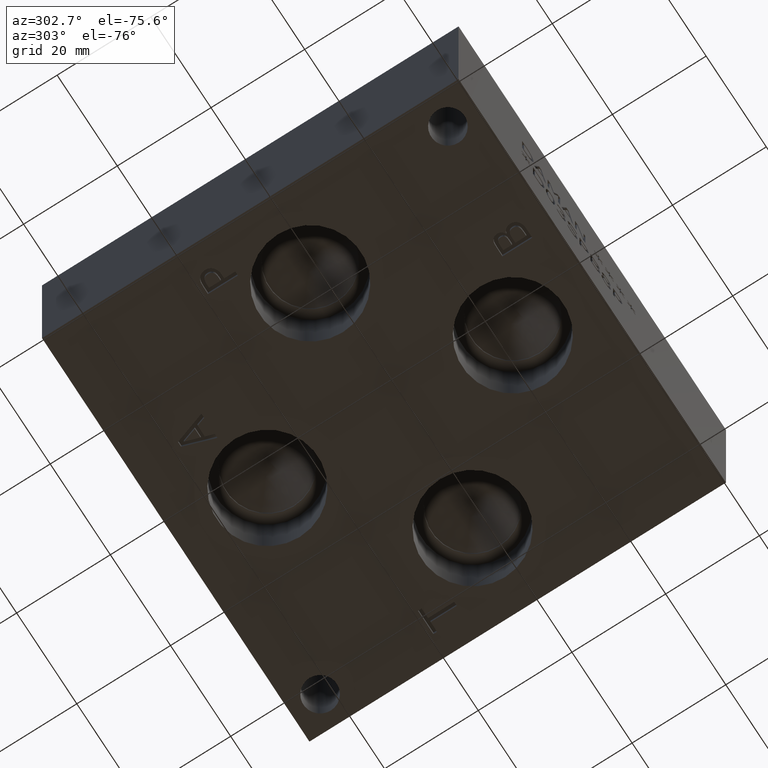
[diagram: clean part render]
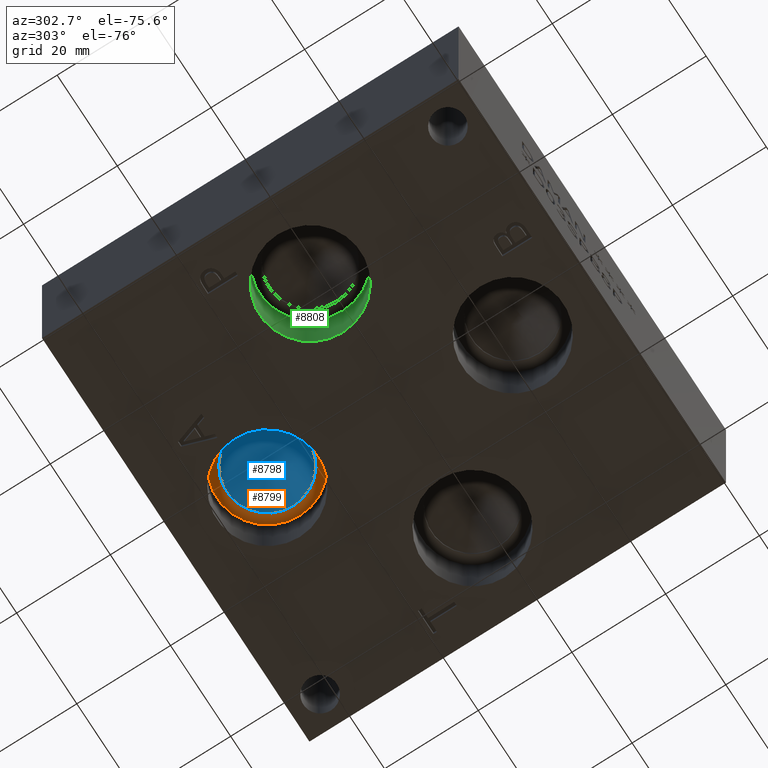
[diagram: same view with three faces highlighted in distinct colors, each labeled with its STEP entity id]
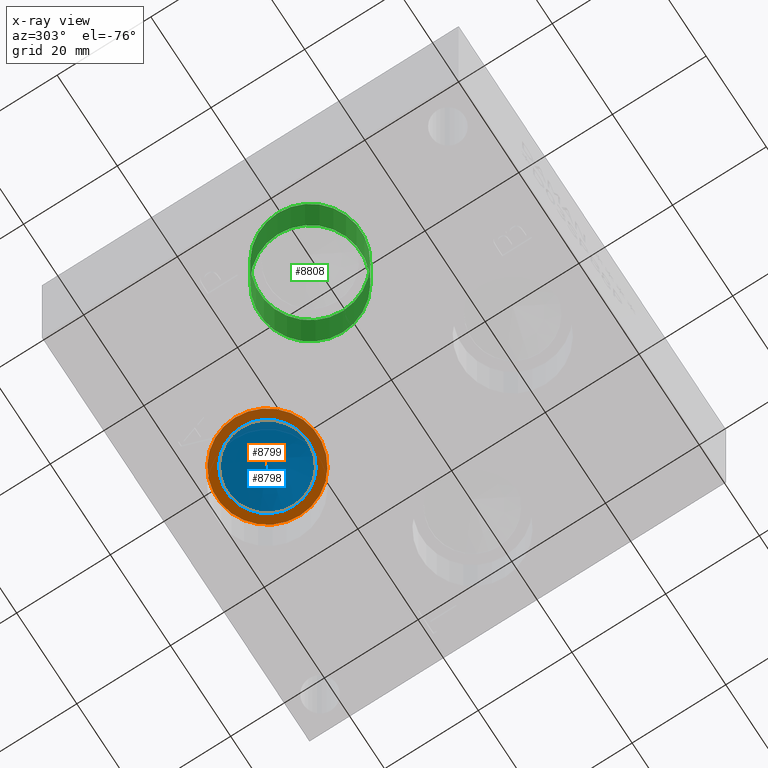
[diagram: x-ray of the same camera — body ghosted, the three highlighted faces saturated]
A machine part, auxiliary view with three faces highlighted in distinct colors.
The next image is the same camera in x-ray (body ghosted, the three faces saturated) — at least one of them is partly hidden behind the body in this view.
Their STEP definitions:

[orange] entity #8799 — the highlighted planar face has unit normal (0, 0, -1).
#69=CIRCLE('',#9146,10.795);
#70=CIRCLE('',#9147,10.795);
#71=CIRCLE('',#9148,8.7376);
#184=FACE_BOUND('',#1375,.T.);
#466=PLANE('',#9145);
#881=FACE_OUTER_BOUND('',#1374,.T.);
#1374=EDGE_LOOP('',(#7642,#7643));
#1375=EDGE_LOOP('',(#7644));
#4164=VERTEX_POINT('',#14916);
#4165=VERTEX_POINT('',#14917);
#4166=VERTEX_POINT('',#14920);
#5350=EDGE_CURVE('',#4164,#4165,#69,.T.);
#5351=EDGE_CURVE('',#4165,#4164,#70,.T.);
#5352=EDGE_CURVE('',#4166,#4166,#71,.T.);
#7642=ORIENTED_EDGE('',*,*,#5350,.T.);
#7643=ORIENTED_EDGE('',*,*,#5351,.T.);
#7644=ORIENTED_EDGE('',*,*,#5352,.F.);
#8799=ADVANCED_FACE('',(#881,#184),#466,.T.);
#9145=AXIS2_PLACEMENT_3D('',#14915,#10650,#10651);
#9146=AXIS2_PLACEMENT_3D('',#14918,#10652,#10653);
#9147=AXIS2_PLACEMENT_3D('',#14919,#10654,#10655);
#9148=AXIS2_PLACEMENT_3D('',#14921,#10656,#10657);
#10650=DIRECTION('center_axis',(0.,0.,-1.));
#10651=DIRECTION('ref_axis',(1.,0.,0.));
#10652=DIRECTION('center_axis',(0.,0.,-1.));
#10653=DIRECTION('ref_axis',(1.,0.,0.));
#10654=DIRECTION('center_axis',(0.,0.,-1.));
#10655=DIRECTION('ref_axis',(1.,0.,0.));
#10656=DIRECTION('center_axis',(0.,0.,-1.));
#10657=DIRECTION('ref_axis',(1.,0.,0.));
#14915=CARTESIAN_POINT('Origin',(45.2374,69.85,15.367));
#14916=CARTESIAN_POINT('',(56.0324,69.85,15.367));
#14917=CARTESIAN_POINT('',(34.4424,69.85,15.367));
#14918=CARTESIAN_POINT('Origin',(45.2374,69.85,15.367));
#14919=CARTESIAN_POINT('Origin',(45.2374,69.85,15.367));
#14920=CARTESIAN_POINT('',(36.4998,69.85,15.367));
#14921=CARTESIAN_POINT('Origin',(45.2374,69.85,15.367));

[blue] entity #8798 — the highlighted conical surface has half-angle 60 deg.
#40=CONICAL_SURFACE('',#9142,4.3688,1.0471975511966);
#67=CIRCLE('',#9143,8.7376);
#68=CIRCLE('',#9144,8.7376);
#880=FACE_OUTER_BOUND('',#1373,.T.);
#1373=EDGE_LOOP('',(#7638,#7639,#7640,#7641));
#2259=LINE('',#14913,#3115);
#3115=VECTOR('',#10647,4.3688);
#4161=VERTEX_POINT('',#14909);
#4162=VERTEX_POINT('',#14910);
#4163=VERTEX_POINT('',#14912);
#5347=EDGE_CURVE('',#4161,#4162,#67,.T.);
#5348=EDGE_CURVE('',#4162,#4163,#2259,.T.);
#5349=EDGE_CURVE('',#4162,#4161,#68,.T.);
#7638=ORIENTED_EDGE('',*,*,#5347,.T.);
#7639=ORIENTED_EDGE('',*,*,#5348,.T.);
#7640=ORIENTED_EDGE('',*,*,#5348,.F.);
#7641=ORIENTED_EDGE('',*,*,#5349,.T.);
#8798=ADVANCED_FACE('',(#880),#40,.F.);
#9142=AXIS2_PLACEMENT_3D('',#14908,#10643,#10644);
#9143=AXIS2_PLACEMENT_3D('',#14911,#10645,#10646);
#9144=AXIS2_PLACEMENT_3D('',#14914,#10648,#10649);
#10643=DIRECTION('center_axis',(0.,0.,-1.));
#10644=DIRECTION('ref_axis',(1.,0.,0.));
#10645=DIRECTION('center_axis',(0.,0.,-1.));
#10646=DIRECTION('ref_axis',(1.,0.,0.));
#10647=DIRECTION('',(0.866025403784439,-1.06057523872491E-16,0.5));
#10648=DIRECTION('center_axis',(0.,0.,-1.));
#10649=DIRECTION('ref_axis',(1.,0.,0.));
#14908=CARTESIAN_POINT('Origin',(45.2374,69.85,18.3937978560356));
#14909=CARTESIAN_POINT('',(53.975,69.85,15.87147));
#14910=CARTESIAN_POINT('',(36.4998,69.85,15.87147));
#14911=CARTESIAN_POINT('Origin',(45.2374,69.85,15.87147));
#14912=CARTESIAN_POINT('',(45.2374,69.85,20.9161257120713));
#14913=CARTESIAN_POINT('',(40.8686,69.85,18.3937978560356));
#14914=CARTESIAN_POINT('Origin',(45.2374,69.85,15.87147));

[green] entity #8808 — the highlighted cylindrical surface (bore or boss wall) has radius 10.795 mm, axis along (0, 0, -1).
#20=CYLINDRICAL_SURFACE('',#9167,10.795);
#58=CIRCLE('',#8878,10.795);
#59=CIRCLE('',#8879,10.795);
#79=CIRCLE('',#9164,10.795);
#80=CIRCLE('',#9165,10.795);
#890=FACE_OUTER_BOUND('',#1386,.T.);
#1386=EDGE_LOOP('',(#7681,#7682,#7683,#7684,#7685,#7686));
#2266=LINE('',#14959,#3122);
#3122=VECTOR('',#10702,10.795);
#3473=VERTEX_POINT('',#11168);
#3474=VERTEX_POINT('',#11169);
#4176=VERTEX_POINT('',#14952);
#4177=VERTEX_POINT('',#14953);
#4314=EDGE_CURVE('',#3473,#3474,#58,.T.);
#4315=EDGE_CURVE('',#3474,#3473,#59,.T.);
#5366=EDGE_CURVE('',#4176,#4177,#79,.T.);
#5367=EDGE_CURVE('',#4177,#4176,#80,.T.);
#5369=EDGE_CURVE('',#3474,#4177,#2266,.T.);
#7681=ORIENTED_EDGE('',*,*,#4314,.F.);
#7682=ORIENTED_EDGE('',*,*,#4315,.F.);
#7683=ORIENTED_EDGE('',*,*,#5369,.T.);
#7684=ORIENTED_EDGE('',*,*,#5366,.F.);
#7685=ORIENTED_EDGE('',*,*,#5367,.F.);
#7686=ORIENTED_EDGE('',*,*,#5369,.F.);
#8808=ADVANCED_FACE('',(#890),#20,.F.);
#8878=AXIS2_PLACEMENT_3D('',#11170,#9343,#9344);
#8879=AXIS2_PLACEMENT_3D('',#11171,#9345,#9346);
#9164=AXIS2_PLACEMENT_3D('',#14954,#10694,#10695);
#9165=AXIS2_PLACEMENT_3D('',#14955,#10696,#10697);
#9167=AXIS2_PLACEMENT_3D('',#14958,#10700,#10701);
#9343=DIRECTION('center_axis',(0.,0.,1.));
#9344=DIRECTION('ref_axis',(1.,0.,0.));
#9345=DIRECTION('center_axis',(0.,0.,1.));
#9346=DIRECTION('ref_axis',(1.,0.,0.));
#10694=DIRECTION('center_axis',(0.,0.,-1.));
#10695=DIRECTION('ref_axis',(1.,0.,0.));
#10696=DIRECTION('center_axis',(0.,0.,-1.));
#10697=DIRECTION('ref_axis',(1.,0.,0.));
#10700=DIRECTION('center_axis',(0.,0.,-1.));
#10701=DIRECTION('ref_axis',(1.,0.,0.));
#10702=DIRECTION('',(0.,0.,1.));
#11168=CARTESIAN_POINT('',(28.2702,42.8752,0.));
#11169=CARTESIAN_POINT('',(6.6802,42.8752,0.));
#11170=CARTESIAN_POINT('Origin',(17.4752,42.8752,0.));
#11171=CARTESIAN_POINT('Origin',(17.4752,42.8752,0.));
#14952=CARTESIAN_POINT('',(28.2702,42.8752,15.367));
#14953=CARTESIAN_POINT('',(6.6802,42.8752,15.367));
#14954=CARTESIAN_POINT('Origin',(17.4752,42.8752,15.367));
#14955=CARTESIAN_POINT('Origin',(17.4752,42.8752,15.367));
#14958=CARTESIAN_POINT('Origin',(17.4752,42.8752,7.6835));
#14959=CARTESIAN_POINT('',(6.6802,42.8752,7.6835));